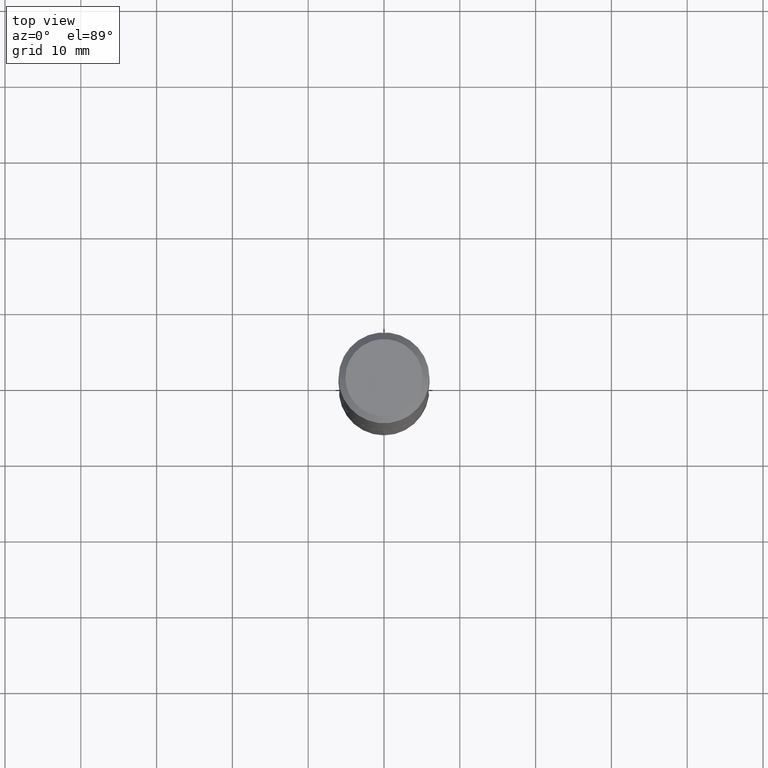
[diagram: clean part render]
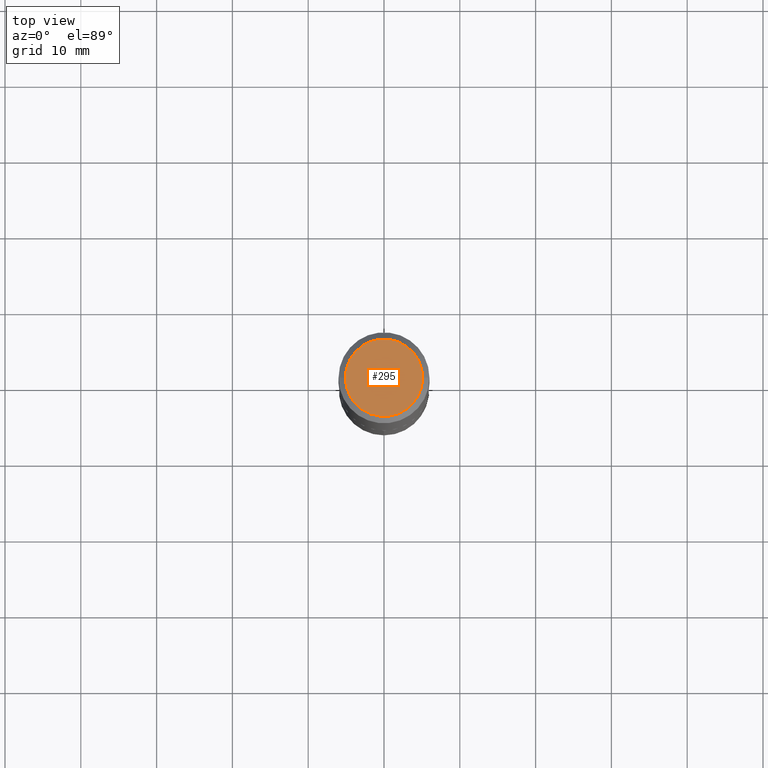
[diagram: same view with one face highlighted and labeled with its STEP entity id]
A machine part, top view. The second image highlights one B-rep face of the part: STEP entity #295.
In plain terms, the highlighted planar face has unit normal (0, -0, -1).
Its self-contained STEP definition (entity closure, byte-faithful):
#26 = EDGE_CURVE ( 'NONE', #426, #35, #66, .T. ) ;
#27 = EDGE_LOOP ( 'NONE', ( #133, #187 ) ) ;
#34 = DIRECTION ( 'NONE',  ( -2.445468806185136597E-29, 3.491481338843145583E-15, 1.000000000000000000 ) ) ;
#35 = VERTEX_POINT ( 'NONE', #115 ) ;
#66 = CIRCLE ( 'NONE', #404, 0.2007700000000000040 ) ;
#74 = DIRECTION ( 'NONE',  ( 2.438088387897960049E-29, -3.491481338843145188E-15, -1.000000000000000000 ) ) ;
#106 = CARTESIAN_POINT ( 'NONE',  ( -1.001697619218023151E-46, 1.430158722866391908E-32, 4.096137381448114529E-18 ) ) ;
#115 = CARTESIAN_POINT ( 'NONE',  ( -0.2007700000000000040, 1.463821008716676943E-15, 4.096137381438094301E-18 ) ) ;
#133 = ORIENTED_EDGE ( 'NONE', *, *, #344, .T. ) ;
#151 = DIRECTION ( 'NONE',  ( -2.445468806185136597E-29, 3.491481338843145583E-15, 1.000000000000000000 ) ) ;
#159 = CARTESIAN_POINT ( 'NONE',  ( -1.001697619218023151E-46, 1.430158722866391908E-32, 4.096137381448114529E-18 ) ) ;
#180 = CARTESIAN_POINT ( 'NONE',  ( -5.008488096090115757E-47, 7.150793614331959538E-33, 2.048068690724057264E-18 ) ) ;
#187 = ORIENTED_EDGE ( 'NONE', *, *, #26, .T. ) ;
#215 = PLANE ( 'NONE',  #227 ) ;
#227 = AXIS2_PLACEMENT_3D ( 'NONE', #180, #74, #395 ) ;
#275 = AXIS2_PLACEMENT_3D ( 'NONE', #106, #34, #429 ) ;
#295 = ADVANCED_FACE ( 'NONE', ( #330 ), #215, .F. ) ;
#330 = FACE_OUTER_BOUND ( 'NONE', #27, .T. ) ;
#344 = EDGE_CURVE ( 'NONE', #35, #426, #413, .T. ) ;
#357 = CARTESIAN_POINT ( 'NONE',  ( 0.2007700000000000040, -1.560767496960719869E-15, 4.096137381458473721E-18 ) ) ;
#395 = DIRECTION ( 'NONE',  ( -1.000000000000000000, 6.982962677686265922E-15, -4.876176775795935793E-29 ) ) ;
#404 = AXIS2_PLACEMENT_3D ( 'NONE', #159, #151, #441 ) ;
#413 = CIRCLE ( 'NONE', #275, 0.2007700000000000040 ) ;
#426 = VERTEX_POINT ( 'NONE', #357 ) ;
#429 = DIRECTION ( 'NONE',  ( 1.000000000000000000, -6.982962677686266711E-15, 4.876140833081945105E-29 ) ) ;
#441 = DIRECTION ( 'NONE',  ( 1.000000000000000000, -6.982962677686266711E-15, 4.876140833081945105E-29 ) ) ;